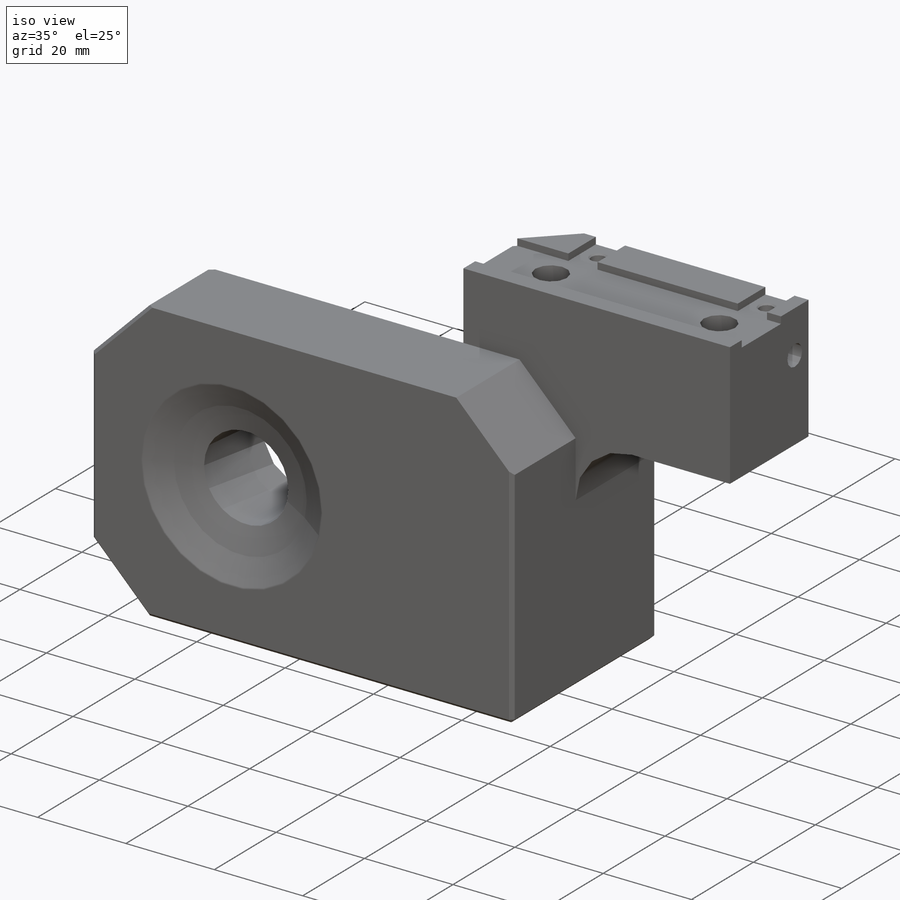
[diagram: iso view]
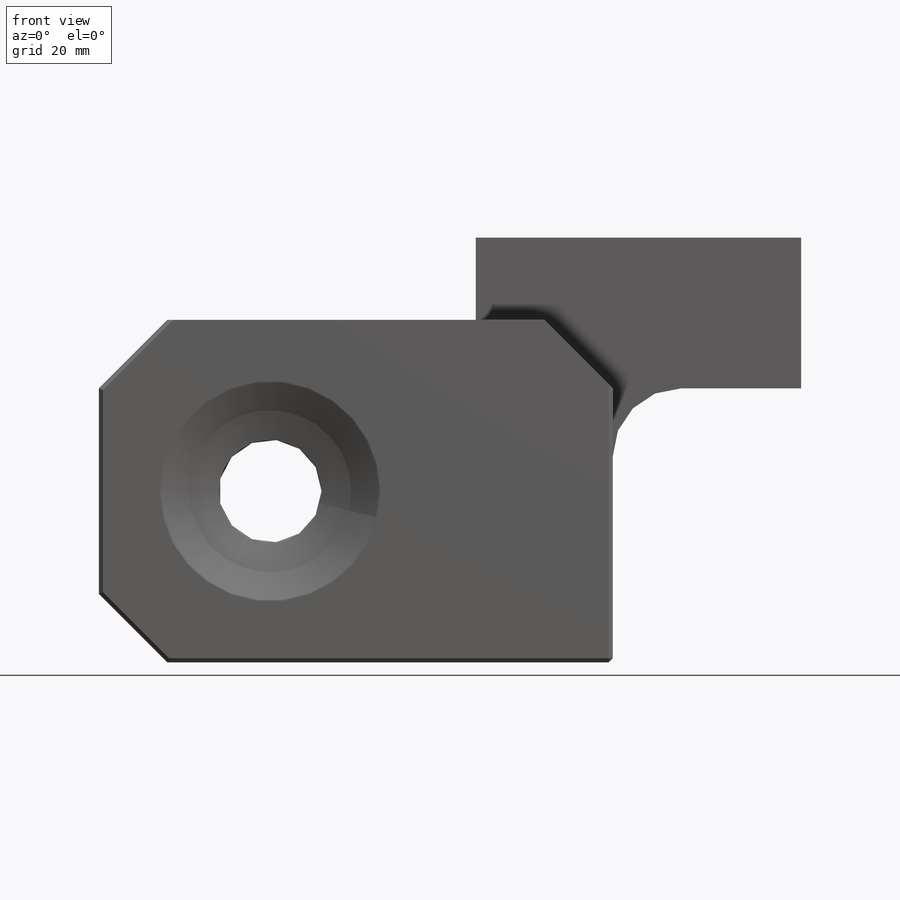
[diagram: front view]
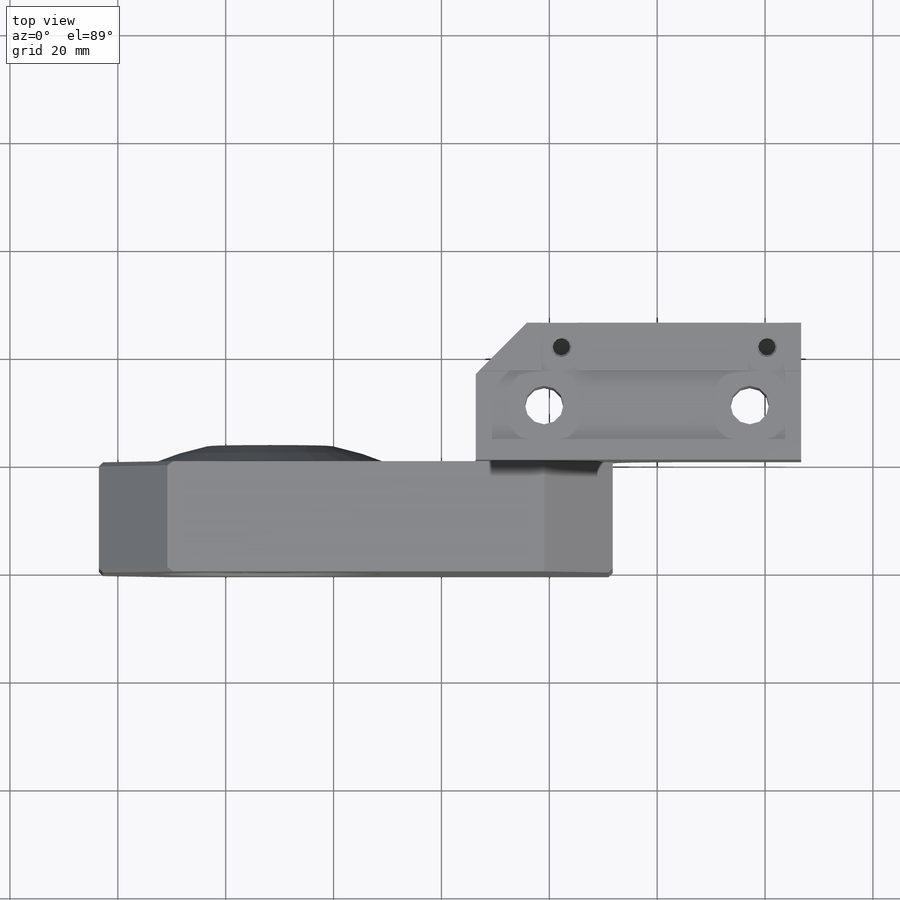
[diagram: top view]
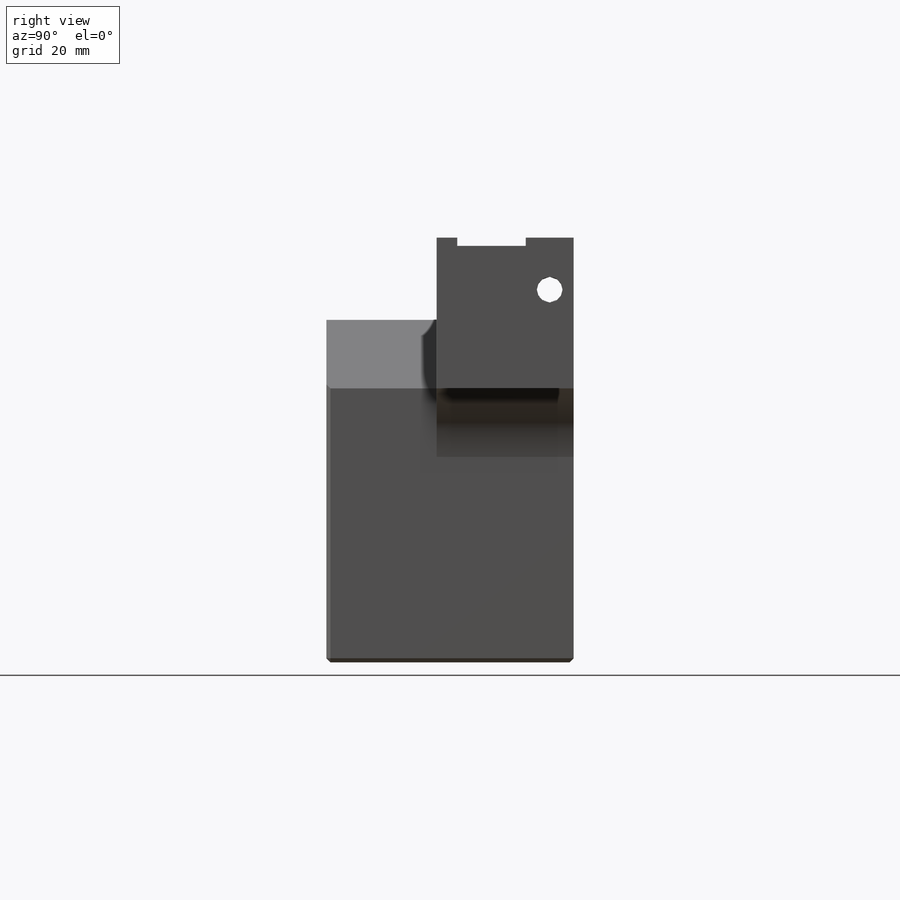
[diagram: right view]
SOLIDWORKS PART (.sldprt)
format: sldprt  version: not decoded by parser v0  size: 885,760 bytes
history: native  units: mm
features: sketch x18, extrude x17, plane x4, cut_extrude x4, hole x4, fillet x4, chamfer x3, material x1, cut_revolve x1 (+11 scaffold rows collapsed)
feature tree (67):
  scaffold x11  (default folders/planes/origin — collapsed)
  material  "6061-T6 Al"
  plane  "XY"
  plane  "XZ"
  plane  "YZ"
  sketch  "Sketch1"  dims[D1=76.2mm D2=25.4mm]
  extrude  "Extrude1"  Depth=20.447mm ID=164619364
  extrude  "ID"  [1 undecoded]
  extrude  "faceID"  Depth=0 cosFaceIDTag=0
  extrude  "faceID"  [1 undecoded]
  extrude  "faceID"  [1 undecoded]
  extrude  "faceID"  [1 undecoded]
  extrude  "faceID"  [1 undecoded]
  extrude  "faceID"  [1 undecoded]
  extrude  "faceID"  [1 undecoded]
  extrude  "faceID"  [1 undecoded]
  extrude  "faceID"  [1 undecoded]
  extrude  "faceID"  [1 undecoded]
  extrude  "faceID"  [1 undecoded]
  sketch  "Sketch60"  dims[D1=63.5mm D2=25.4mm D3=4.953mm]
  extrude  "Extrude6"  Depth=63.5mm
  plane  "Plane1"
  sketch  "Sketch64"  dims[c1.D1=38.1mm c1.D4=~130.702129mm c1.D5=~114.322858mm c1.D8=38.1mm c1.D2=20.32mm c1.D3=~6.888805mm c2.D1=38.1mm c2.D3=32.2326mm c2.D2=20.32mm c3.D3=11.43mm c3.D4=17.907mm c3.D5=22.225mm c3.D6=31.75mm c3.D7=~1.621987mm]
  cut_revolve  "Cut-Revolve1"  Angle=360deg
  sketch  "Sketch69"  dims[D3=44.45mm D1=63.5mm D2=63.5mm D4=31.75mm D5=31.75mm]
  cut_extrude  "Cut-Extrude23"  Depth=4.953mm
  sketch  "Sketch71"  dims[c1.D1=19.05mm c1.D2=19.05mm c1.D3=19.05mm c2.D2=31.75mm c2.D3=31.75mm]
  cut_extrude  "Cut-Extrude24"  [1 undecoded]
  sketch  "Sketch80"
  extrude  "Extrude11"  Depth=6.35mm
  sketch  "Sketch76"  dims[D1=6.35mm]
  extrude  "Extrude9"  Depth=25.4mm
  sketch  "Sketch79"  dims[c1.D1=~10.650756mm c1.D2=~38.972129mm c2.D1=50.8mm c2.D2=6.35mm c2.D3=~31.861616mm c3.D2=50.8mm]
  cut_extrude  "Extrude10"  [1 undecoded]
  sketch  "Sketch84"  dims[c1.D1=~27.576409mm c1.D2=~57.177662mm c2.D1=60.325mm]
  extrude  "Extrude14"  Depth=15.24mm
  hole  "CBORE for 1/4 Socket Head Cap Screw1"  Diameter=7.14248mm Depth=78.74mm
  sketch  "Sketch86"  dims[D1=15.24mm D2=12.7mm]
  sketch  "Sketch85"  dims[hole-wizard template sketch: 42 standard entries collapsed; hole parameters kept: c12.Thru Hole Depth=78.74mm c12.C'Bore Dia.=12.7mm c12.C'Bore Depth=50.8mm c12.Near C'Sink Dia.=14.224mm c12.D6=~4.399409mm c12.Near C'Sink Angle=90.0deg c12.Far C'Sink Dia.=~8.41248mm c12.D8=~2.963249mm c12.Far C'Sink Angle=90.0deg]
  hole  "1/4 Clearance Hole2"  Diameter=7.14248mm Depth=27.94mm
  sketch  "Sketch88"  dims[c1.D1=38.1mm c1.D2=31.75mm c2.D1=38.1mm]
  sketch  "Sketch87"  dims[hole-wizard template sketch: 54 standard entries collapsed; hole parameters kept: c17.Thru Hole Dia.=~7.14248mm c17.Thru Hole Depth=27.94mm c17.Far C'Sink Dia.=~8.41248mm c17.D4=~2.963249mm c17.Far C'Sink Angle=90.0deg]
  sketch  "Sketch89"  dims[c1.D1=~13.423781mm c1.D2=60.325mm c2.D1=12.7mm c2.D2=6.35mm c2.D3=6.604mm c2.D4=6.604mm c2.D5=3.175mm c2.D6=31.75mm]
  cut_extrude  "Extrude15"  Depth=1.524mm
  hole  "CBORE for 1/8" Press Pin"  Diameter=3.175mm Depth=6.35mm
  sketch  "Sketch91"  dims[D1=4.445mm D2=38.1mm D3=6.35mm]
  sketch  "Sketch90"  dims[hole-wizard template sketch: 35 standard entries collapsed; hole parameters above]
  chamfer  "Chamfer5"  Distance=9.525mm Angle=45deg
  fillet  "Fillet6"  Radius=12.7mm
  chamfer  "Chamfer3"  Distance=12.7mm Angle=45deg
  fillet  "Fillet7"  Radius=0.254mm
  chamfer  "Chamfer4"  Distance=0.762mm Angle=45deg
  fillet  "Fillet4"  Radius=2.54mm
  fillet  "Fillet5"  Radius=0.635mm
  hole  "3/16 (0.1875) Diameter Hole1"  Diameter=4.7625mm Depth=130.175mm
  sketch  "Sketch93"  dims[D1=4.445mm D2=9.652mm]
  sketch  "Sketch92"  dims[hole-wizard template sketch: 60 standard entries collapsed; hole parameters kept: c18.Thru Hole Depth=130.175mm]
decode coverage: 37 of 51 modeling features carry decoded parameters
note: ~ marks probable driven/reference dimensions
note: 13 parameter values undecoded
summary: no parameter record found for 13 features; Diameter pulled from absorbed wizard sketch
note: suppression state not decoded; provenance and decode notes live in map.json
